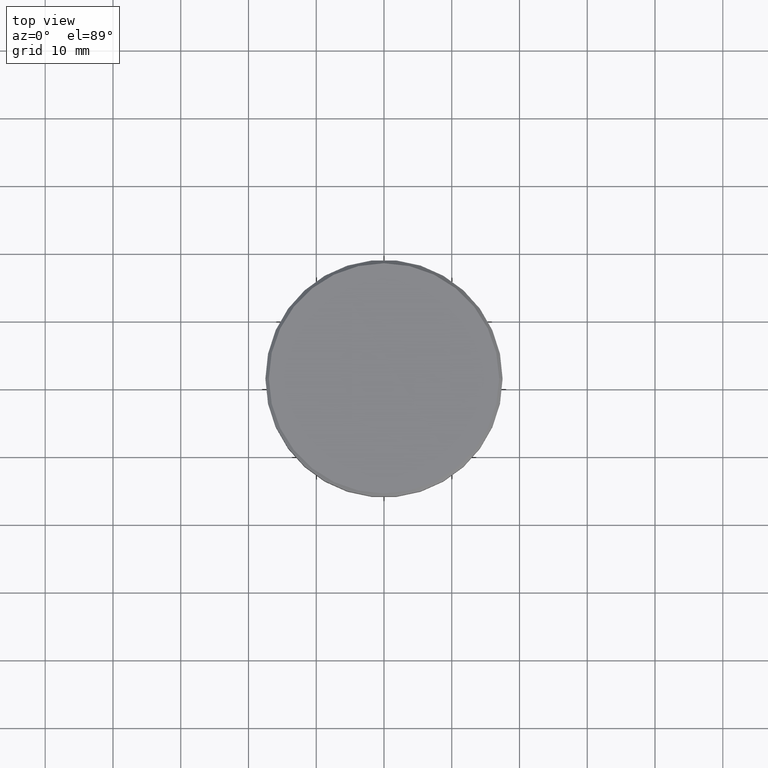
[diagram: clean part render]
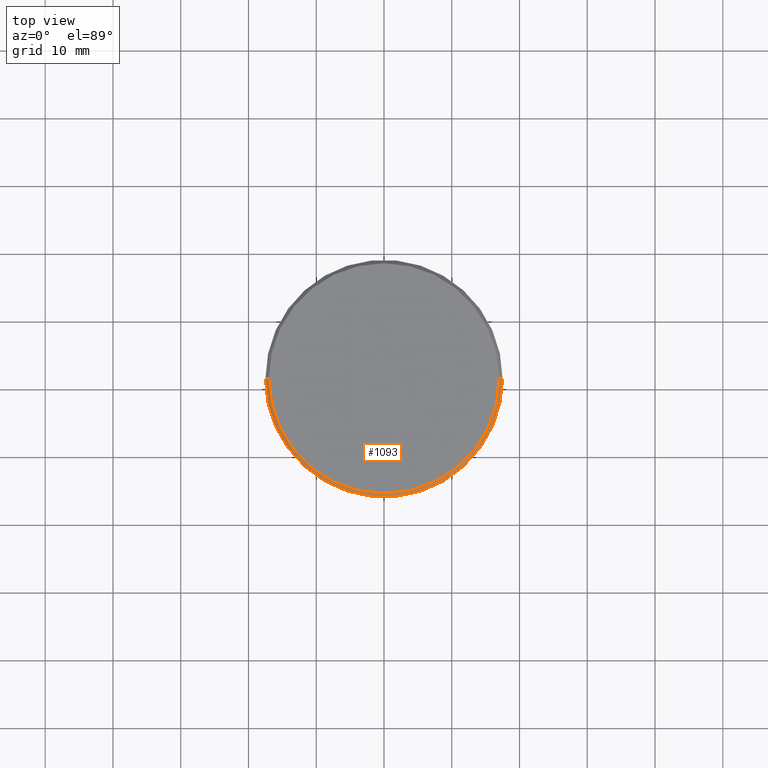
[diagram: same view with one face highlighted and labeled with its STEP entity id]
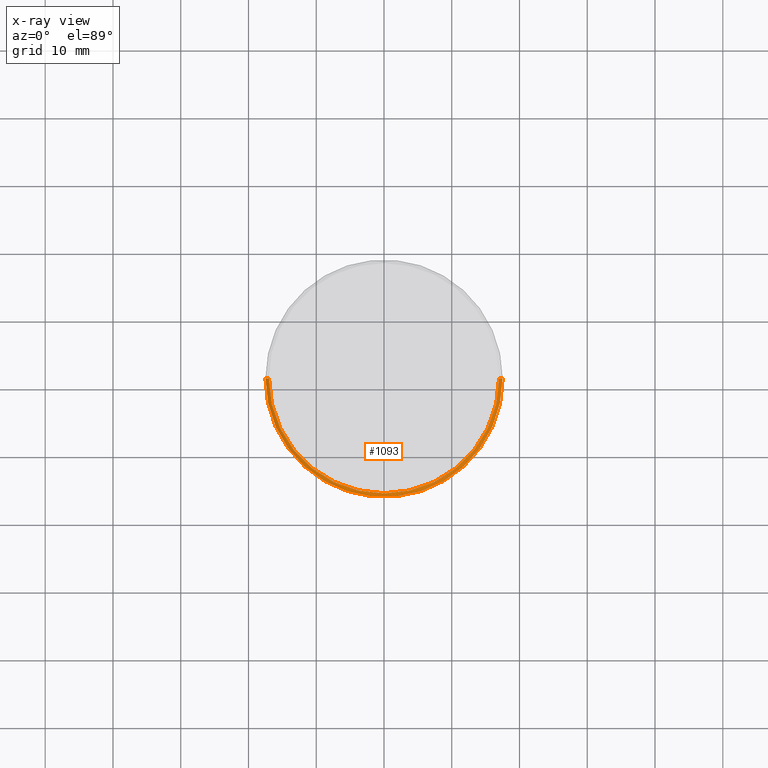
[diagram: x-ray of the same camera — body ghosted, the highlighted face saturated]
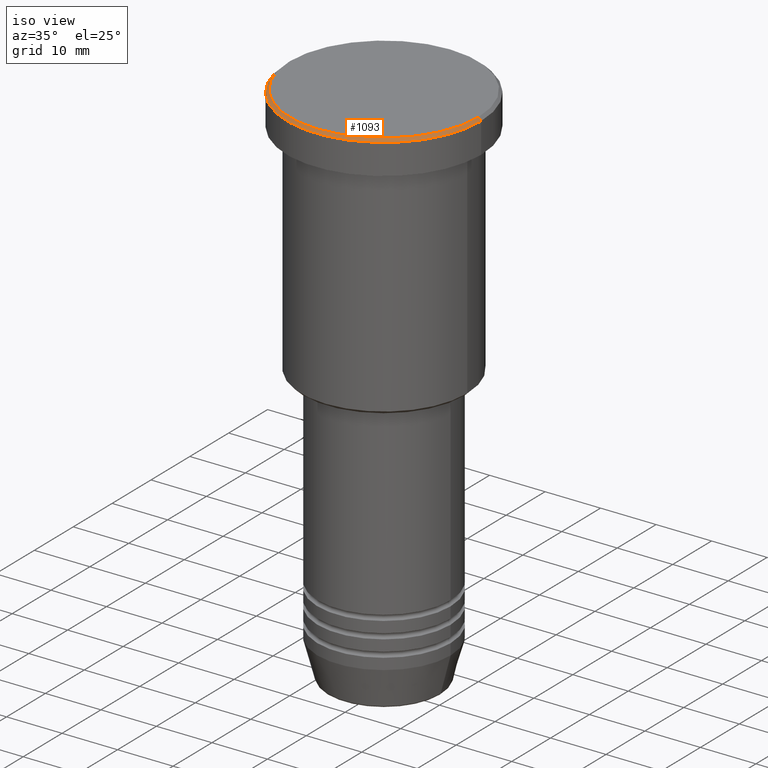
[diagram: same view with one face highlighted and labeled with its STEP entity id]
A machine part, top view. The second image highlights one B-rep face of the part: STEP entity #1093.
The next image is the same camera in x-ray: the body ghosted, the highlighted face saturated — about 0% of this face is hidden behind the body in this view.
A second angle (iso view) of the same face is appended — the face is thin or edge-on in the first view.
In plain terms, the highlighted conical surface has half-angle 45 deg.
Its self-contained STEP definition (entity closure, byte-faithful):
#34 = DIRECTION ( 'NONE',  ( -0.000000000000000000, -0.000000000000000000, 1.000000000000000000 ) ) ;
#49 = DIRECTION ( 'NONE',  ( 1.000000000000000000, 0.000000000000000000, 0.000000000000000000 ) ) ;
#95 = VECTOR ( 'NONE', #473, 1000.000000000000000 ) ;
#96 = EDGE_CURVE ( 'NONE', #598, #434, #1106, .T. ) ;
#123 = CARTESIAN_POINT ( 'NONE',  ( -17.50000000000000000, 2.143131898507868248E-15, -0.4999999999999866773 ) ) ;
#176 = CARTESIAN_POINT ( 'NONE',  ( 17.50000000000000000, 0.000000000000000000, -0.4999999999999866773 ) ) ;
#226 = EDGE_CURVE ( 'NONE', #434, #703, #447, .T. ) ;
#236 = VECTOR ( 'NONE', #1042, 1000.000000000000000 ) ;
#311 = EDGE_CURVE ( 'NONE', #1039, #703, #407, .T. ) ;
#350 = CIRCLE ( 'NONE', #635, 17.00000000000000000 ) ;
#372 = CARTESIAN_POINT ( 'NONE',  ( 17.00000000000000000, 2.081899558550500280E-15, 0.000000000000000000 ) ) ;
#373 = DIRECTION ( 'NONE',  ( -1.000000000000000000, 0.000000000000000000, 0.000000000000000000 ) ) ;
#407 = LINE ( 'NONE', #770, #236 ) ;
#418 = CARTESIAN_POINT ( 'NONE',  ( 0.000000000000000000, 0.000000000000000000, -0.4999999999999866773 ) ) ;
#434 = VERTEX_POINT ( 'NONE', #176 ) ;
#447 = CIRCLE ( 'NONE', #504, 17.50000000000000000 ) ;
#470 = CARTESIAN_POINT ( 'NONE',  ( 0.000000000000000000, 0.000000000000000000, 0.000000000000000000 ) ) ;
#473 = DIRECTION ( 'NONE',  ( 0.7071067811865573427, 8.659560562355053653E-17, -0.7071067811865378028 ) ) ;
#474 = CARTESIAN_POINT ( 'NONE',  ( -17.00000000000000000, 0.000000000000000000, 0.000000000000000000 ) ) ;
#490 = CONICAL_SURFACE ( 'NONE', #1112, 17.00000000000000000, 0.7853981633974621568 ) ;
#500 = ORIENTED_EDGE ( 'NONE', *, *, #96, .F. ) ;
#504 = AXIS2_PLACEMENT_3D ( 'NONE', #418, #941, #49 ) ;
#552 = CARTESIAN_POINT ( 'NONE',  ( 17.00000000000000000, 2.112515728529184067E-15, 0.000000000000000000 ) ) ;
#598 = VERTEX_POINT ( 'NONE', #552 ) ;
#635 = AXIS2_PLACEMENT_3D ( 'NONE', #847, #34, #760 ) ;
#703 = VERTEX_POINT ( 'NONE', #123 ) ;
#760 = DIRECTION ( 'NONE',  ( 1.000000000000000000, 0.000000000000000000, 0.000000000000000000 ) ) ;
#770 = CARTESIAN_POINT ( 'NONE',  ( -17.00000000000000000, 0.000000000000000000, 0.000000000000000000 ) ) ;
#792 = EDGE_CURVE ( 'NONE', #1039, #598, #350, .T. ) ;
#826 = DIRECTION ( 'NONE',  ( 0.000000000000000000, 0.000000000000000000, -1.000000000000000000 ) ) ;
#847 = CARTESIAN_POINT ( 'NONE',  ( 0.000000000000000000, 0.000000000000000000, 0.000000000000000000 ) ) ;
#851 = ORIENTED_EDGE ( 'NONE', *, *, #792, .F. ) ;
#911 = FACE_OUTER_BOUND ( 'NONE', #1012, .T. ) ;
#941 = DIRECTION ( 'NONE',  ( 0.000000000000000000, 0.000000000000000000, -1.000000000000000000 ) ) ;
#1012 = EDGE_LOOP ( 'NONE', ( #500, #851, #1081, #1158 ) ) ;
#1039 = VERTEX_POINT ( 'NONE', #474 ) ;
#1042 = DIRECTION ( 'NONE',  ( -0.7071067811865573427, 0.000000000000000000, -0.7071067811865378028 ) ) ;
#1081 = ORIENTED_EDGE ( 'NONE', *, *, #311, .T. ) ;
#1093 = ADVANCED_FACE ( 'NONE', ( #911 ), #490, .T. ) ;
#1106 = LINE ( 'NONE', #372, #95 ) ;
#1112 = AXIS2_PLACEMENT_3D ( 'NONE', #470, #826, #373 ) ;
#1158 = ORIENTED_EDGE ( 'NONE', *, *, #226, .F. ) ;